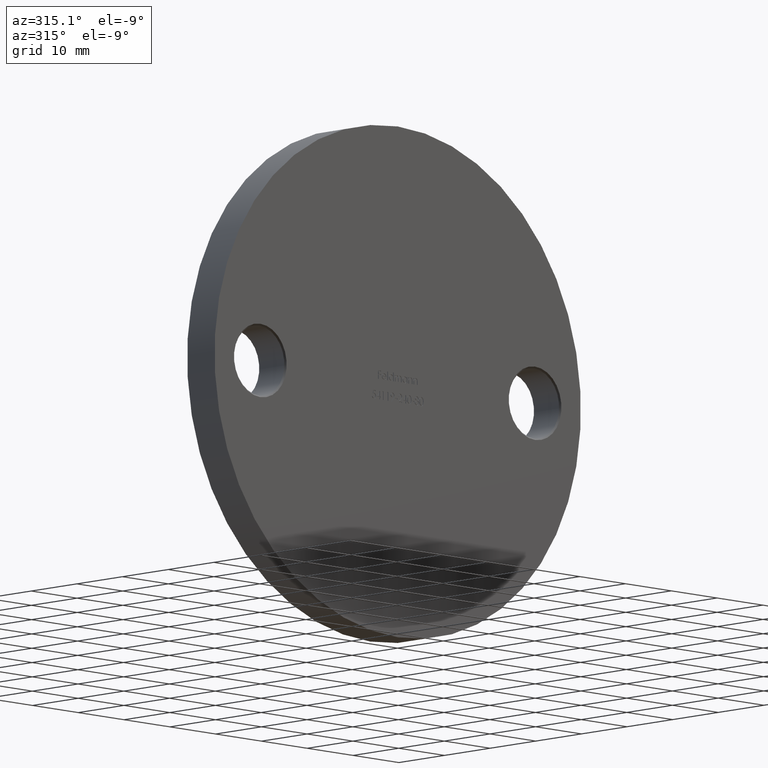
[diagram: clean part render]
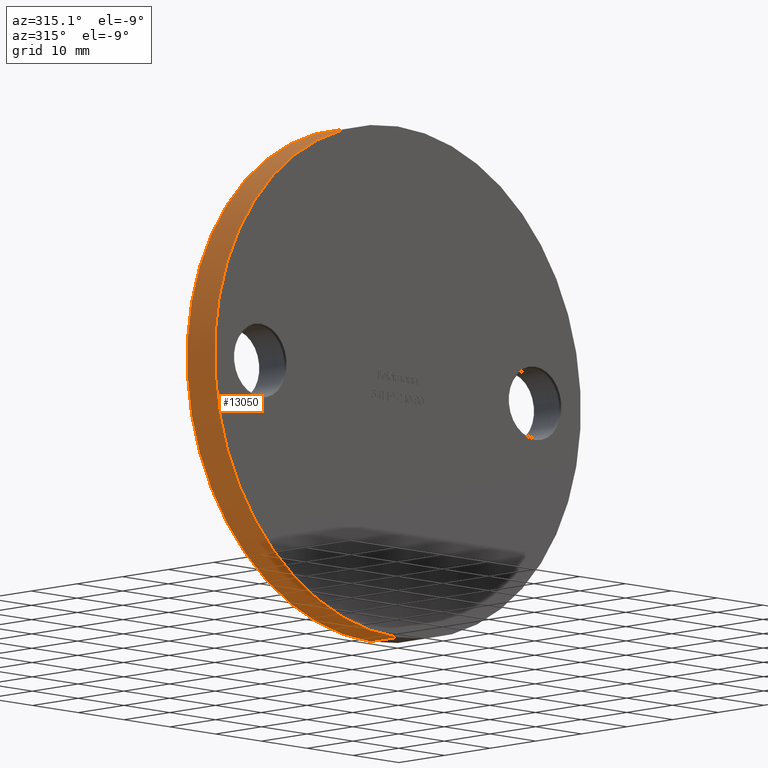
[diagram: same view with one face highlighted and labeled with its STEP entity id]
A machine part, auxiliary view. The second image highlights one B-rep face of the part: STEP entity #13050.
In plain terms, the highlighted cylindrical surface (partial cylindrical patch) has radius 40 mm, axis along (-0, -1, -0).
Its self-contained STEP definition (entity closure, byte-faithful):
#56 = CARTESIAN_POINT ( 'NONE',  ( 0.000000000000000000, 0.000000000000000000, 0.000000000000000000 ) ) ;
#183 = DIRECTION ( 'NONE',  ( 0.000000000000000000, 0.000000000000000000, 1.000000000000000000 ) ) ;
#685 = CARTESIAN_POINT ( 'NONE',  ( 4.898587196589413026E-15, 0.000000000000000000, 40.00000000000000000 ) ) ;
#687 = LINE ( 'NONE', #1032, #6341 ) ;
#787 = DIRECTION ( 'NONE',  ( 0.000000000000000000, 0.000000000000000000, -1.000000000000000000 ) ) ;
#929 = EDGE_CURVE ( 'NONE', #10156, #5188, #10719, .T. ) ;
#1032 = CARTESIAN_POINT ( 'NONE',  ( 0.000000000000000000, 6.000000000000000000, -40.00000000000000000 ) ) ;
#1228 = ORIENTED_EDGE ( 'NONE', *, *, #4441, .T. ) ;
#1597 = AXIS2_PLACEMENT_3D ( 'NONE', #56, #7715, #8588 ) ;
#1795 = CARTESIAN_POINT ( 'NONE',  ( 4.898587196589413026E-15, 6.000000000000000000, 40.00000000000000000 ) ) ;
#2070 = ORIENTED_EDGE ( 'NONE', *, *, #3881, .T. ) ;
#2773 = EDGE_CURVE ( 'NONE', #4113, #10156, #5842, .T. ) ;
#3037 = CARTESIAN_POINT ( 'NONE',  ( 4.898587196589413026E-15, 6.000000000000000000, 40.00000000000000000 ) ) ;
#3881 = EDGE_CURVE ( 'NONE', #9202, #5188, #9929, .T. ) ;
#4113 = VERTEX_POINT ( 'NONE', #5909 ) ;
#4317 = ORIENTED_EDGE ( 'NONE', *, *, #929, .F. ) ;
#4441 = EDGE_CURVE ( 'NONE', #4113, #9202, #687, .T. ) ;
#5188 = VERTEX_POINT ( 'NONE', #685 ) ;
#5741 = CARTESIAN_POINT ( 'NONE',  ( 0.000000000000000000, 6.000000000000000000, 0.000000000000000000 ) ) ;
#5842 = CIRCLE ( 'NONE', #12216, 40.00000000000000000 ) ;
#5909 = CARTESIAN_POINT ( 'NONE',  ( 0.000000000000000000, 6.000000000000000000, -40.00000000000000000 ) ) ;
#6251 = CARTESIAN_POINT ( 'NONE',  ( 0.000000000000000000, 6.000000000000000000, 0.000000000000000000 ) ) ;
#6341 = VECTOR ( 'NONE', #12092, 1000.000000000000000 ) ;
#6734 = DIRECTION ( 'NONE',  ( 0.000000000000000000, 1.000000000000000000, 0.000000000000000000 ) ) ;
#6929 = ORIENTED_EDGE ( 'NONE', *, *, #2773, .F. ) ;
#7352 = DIRECTION ( 'NONE',  ( -0.000000000000000000, -1.000000000000000000, -0.000000000000000000 ) ) ;
#7715 = DIRECTION ( 'NONE',  ( 0.000000000000000000, 1.000000000000000000, 0.000000000000000000 ) ) ;
#8588 = DIRECTION ( 'NONE',  ( 0.000000000000000000, 0.000000000000000000, 1.000000000000000000 ) ) ;
#8678 = CARTESIAN_POINT ( 'NONE',  ( 0.000000000000000000, 0.000000000000000000, -40.00000000000000000 ) ) ;
#9202 = VERTEX_POINT ( 'NONE', #8678 ) ;
#9297 = FACE_OUTER_BOUND ( 'NONE', #9339, .T. ) ;
#9339 = EDGE_LOOP ( 'NONE', ( #4317, #6929, #1228, #2070 ) ) ;
#9929 = CIRCLE ( 'NONE', #1597, 40.00000000000000000 ) ;
#10156 = VERTEX_POINT ( 'NONE', #1795 ) ;
#10719 = LINE ( 'NONE', #3037, #12780 ) ;
#10817 = CYLINDRICAL_SURFACE ( 'NONE', #11644, 40.00000000000000000 ) ;
#11644 = AXIS2_PLACEMENT_3D ( 'NONE', #6251, #7352, #787 ) ;
#12092 = DIRECTION ( 'NONE',  ( -0.000000000000000000, -1.000000000000000000, -0.000000000000000000 ) ) ;
#12216 = AXIS2_PLACEMENT_3D ( 'NONE', #5741, #6734, #183 ) ;
#12780 = VECTOR ( 'NONE', #12936, 1000.000000000000000 ) ;
#12936 = DIRECTION ( 'NONE',  ( -0.000000000000000000, -1.000000000000000000, -0.000000000000000000 ) ) ;
#13050 = ADVANCED_FACE ( 'NONE', ( #9297 ), #10817, .T. ) ;